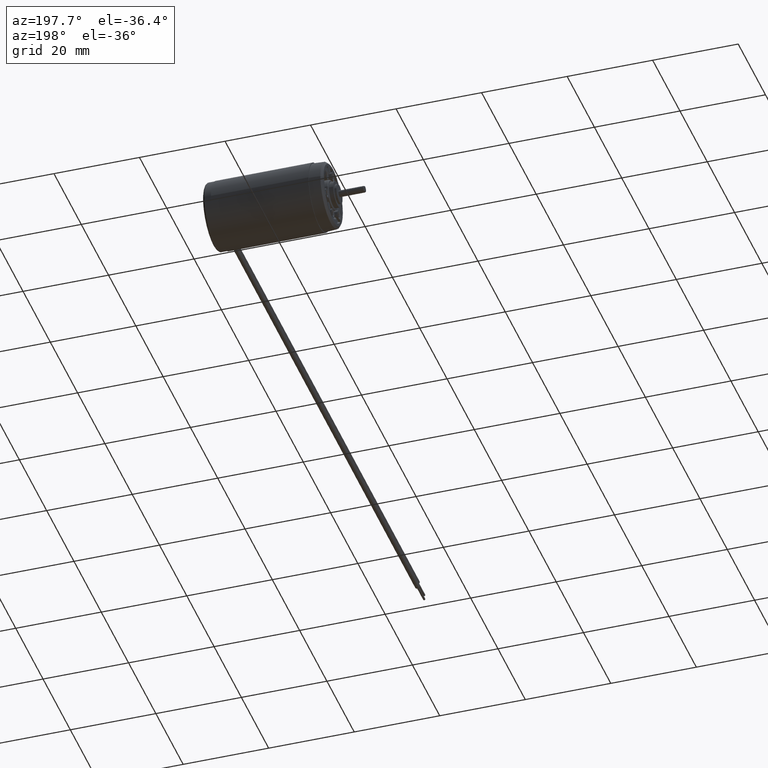
[diagram: clean part render]
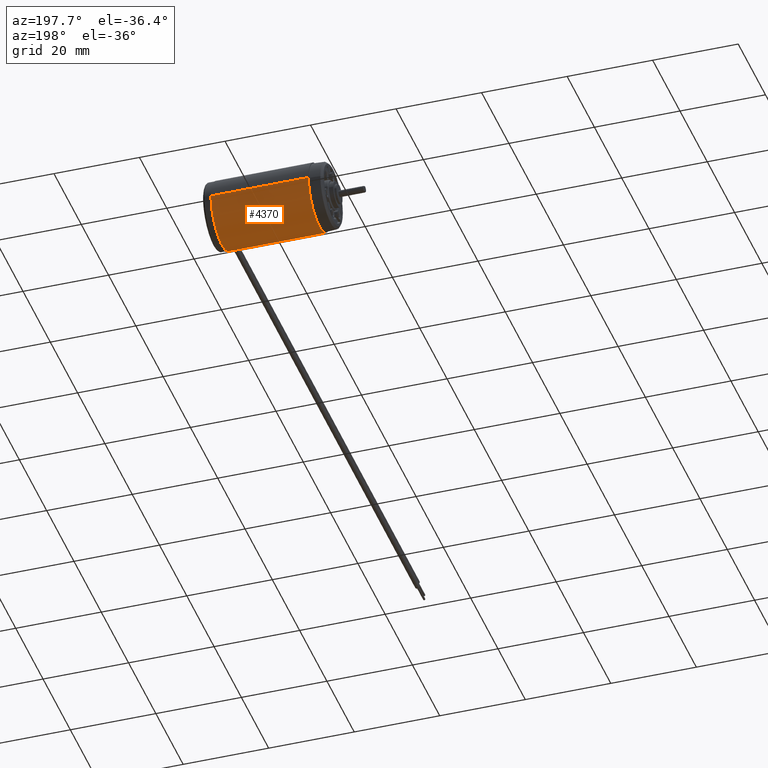
[diagram: same view with one face highlighted and labeled with its STEP entity id]
A machine part, auxiliary view. The second image highlights one B-rep face of the part: STEP entity #4370.
In plain terms, the highlighted cylindrical surface (edge-blend (fillet) strip) has radius 8 mm, axis along (-1, 0, 0).
Its self-contained STEP definition (entity closure, byte-faithful):
#811=CARTESIAN_POINT('',(3.35E1,0.E0,0.E0));
#812=DIRECTION('',(-1.E0,0.E0,0.E0));
#813=DIRECTION('',(0.E0,1.E0,0.E0));
#814=AXIS2_PLACEMENT_3D('',#811,#812,#813);
#816=DIRECTION('',(-1.E0,0.E0,0.E0));
#817=VECTOR('',#816,2.28E1);
#818=CARTESIAN_POINT('',(3.35E1,8.E0,0.E0));
#819=LINE('',#818,#817);
#825=DIRECTION('',(-1.E0,0.E0,0.E0));
#826=VECTOR('',#825,2.28E1);
#827=CARTESIAN_POINT('',(3.35E1,-8.E0,0.E0));
#828=LINE('',#827,#826);
#834=CARTESIAN_POINT('',(1.07E1,1.093573473963E-14,0.E0));
#835=DIRECTION('',(-1.E0,0.E0,0.E0));
#836=DIRECTION('',(0.E0,1.E0,0.E0));
#837=AXIS2_PLACEMENT_3D('',#834,#835,#836);
#2585=CARTESIAN_POINT('',(3.35E1,8.E0,0.E0));
#2586=CARTESIAN_POINT('',(1.07E1,8.E0,0.E0));
#2587=VERTEX_POINT('',#2585);
#2588=VERTEX_POINT('',#2586);
#2601=CARTESIAN_POINT('',(3.35E1,-8.E0,0.E0));
#2602=CARTESIAN_POINT('',(1.07E1,-8.E0,0.E0));
#2603=VERTEX_POINT('',#2601);
#2604=VERTEX_POINT('',#2602);
#4356=CARTESIAN_POINT('',(3.8325E1,0.E0,0.E0));
#4357=DIRECTION('',(-1.E0,0.E0,0.E0));
#4358=DIRECTION('',(0.E0,1.E0,0.E0));
#4359=AXIS2_PLACEMENT_3D('',#4356,#4357,#4358);
#4360=CYLINDRICAL_SURFACE('',#4359,8.E0);
#4362=ORIENTED_EDGE('',*,*,#4361,.T.);
#4364=ORIENTED_EDGE('',*,*,#4363,.T.);
#4366=ORIENTED_EDGE('',*,*,#4365,.F.);
#4367=ORIENTED_EDGE('',*,*,#4332,.F.);
#4368=EDGE_LOOP('',(#4362,#4364,#4366,#4367));
#4369=FACE_OUTER_BOUND('',#4368,.F.);
#4370=ADVANCED_FACE('',(#4369),#4360,.T.);
#815=CIRCLE('',#814,8.E0);
#838=CIRCLE('',#837,8.E0);
#4332=EDGE_CURVE('',#2587,#2603,#815,.T.);
#4361=EDGE_CURVE('',#2587,#2588,#819,.T.);
#4363=EDGE_CURVE('',#2588,#2604,#838,.T.);
#4365=EDGE_CURVE('',#2603,#2604,#828,.T.);